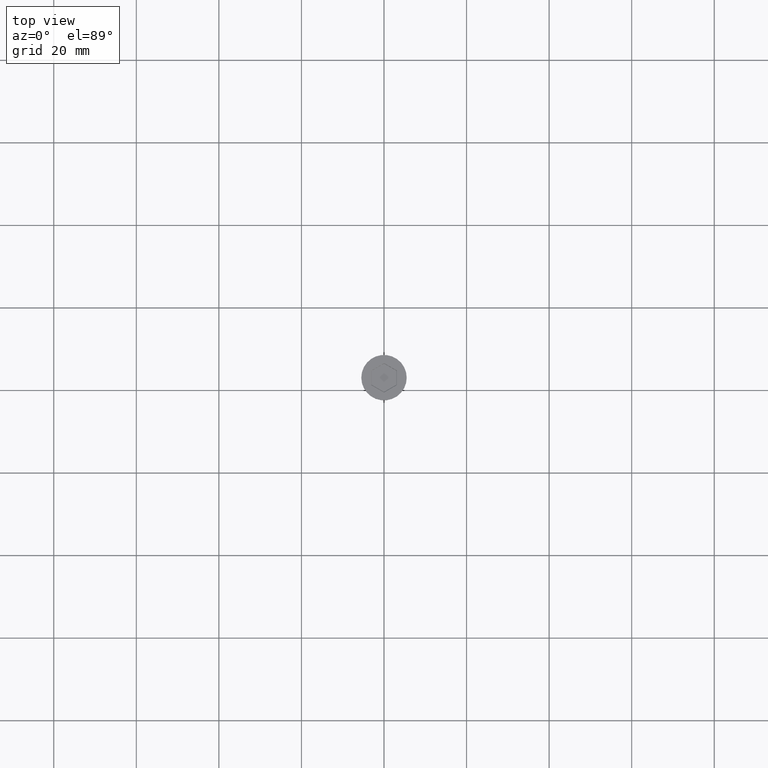
[diagram: clean part render]
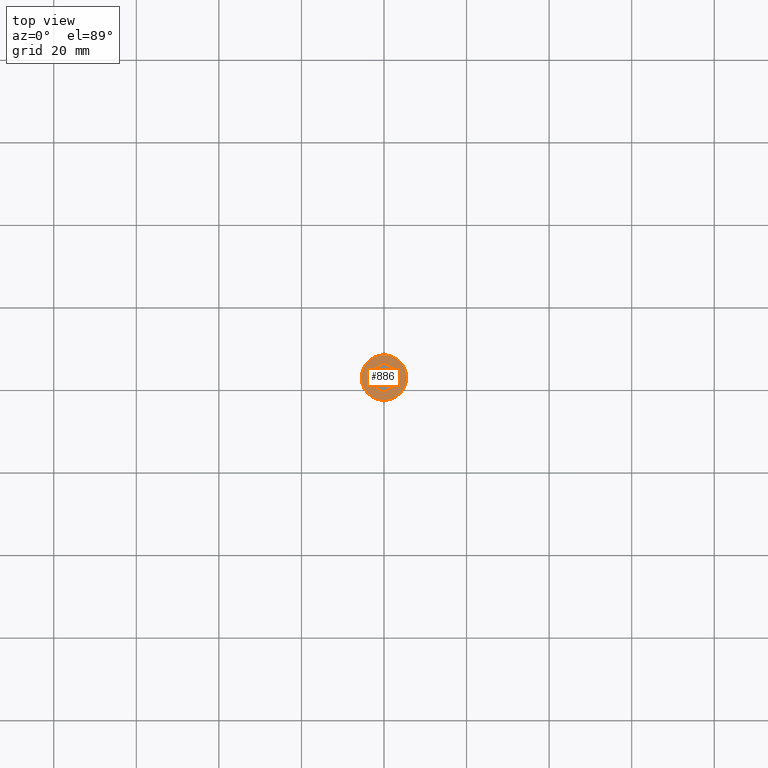
[diagram: same view with one face highlighted and labeled with its STEP entity id]
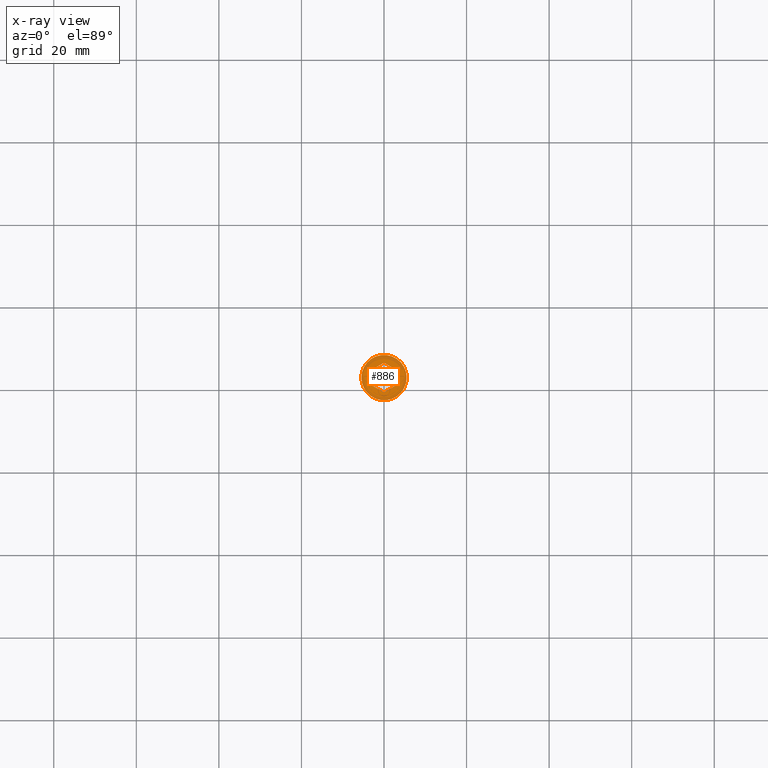
[diagram: x-ray of the same camera — body ghosted, the highlighted face saturated]
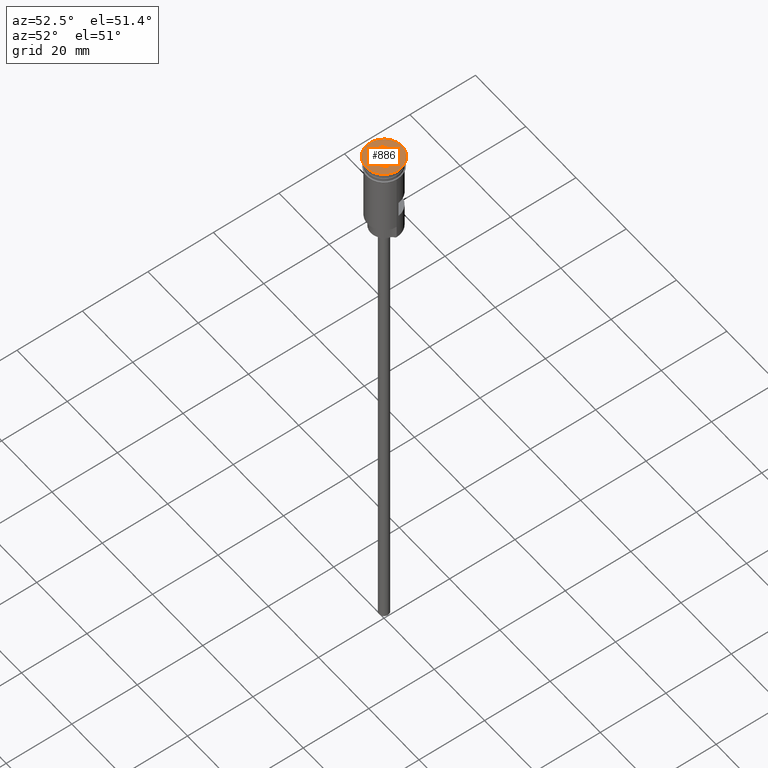
[diagram: same view with one face highlighted and labeled with its STEP entity id]
A machine part, top view. The second image highlights one B-rep face of the part: STEP entity #886.
The next image is the same camera in x-ray: the body ghosted, the highlighted face saturated — about 0% of this face is hidden behind the body in this view.
A second angle (auxiliary view) of the same face is appended — the face is thin or edge-on in the first view.
In plain terms, the highlighted planar face has unit normal (0, -0, 1).
Its self-contained STEP definition (entity closure, byte-faithful):
#3 = ORIENTED_EDGE ( 'NONE', *, *, #47, .T. ) ;
#36 = CARTESIAN_POINT ( 'NONE',  ( -1.958864205101993824E-16, -3.579571668975658927, 0.000000000000000000 ) ) ;
#47 = EDGE_CURVE ( 'NONE', #479, #1359, #405, .T. ) ;
#60 = EDGE_LOOP ( 'NONE', ( #585, #421, #3, #342, #1356, #1378 ) ) ;
#69 = LINE ( 'NONE', #1060, #1196 ) ;
#71 = ORIENTED_EDGE ( 'NONE', *, *, #310, .T. ) ;
#74 = AXIS2_PLACEMENT_3D ( 'NONE', #110, #482, #974 ) ;
#86 = EDGE_CURVE ( 'NONE', #1188, #975, #291, .T. ) ;
#110 = CARTESIAN_POINT ( 'NONE',  ( 0.000000000000000000, 0.000000000000000000, 0.000000000000000000 ) ) ;
#221 = FACE_BOUND ( 'NONE', #60, .T. ) ;
#253 = ORIENTED_EDGE ( 'NONE', *, *, #1426, .T. ) ;
#258 = CIRCLE ( 'NONE', #284, 5.500000000000000000 ) ;
#271 = DIRECTION ( 'NONE',  ( -0.000000000000000000, -0.000000000000000000, 1.000000000000000000 ) ) ;
#278 = CARTESIAN_POINT ( 'NONE',  ( 0.000000000000000000, 0.000000000000000000, 0.000000000000000000 ) ) ;
#284 = AXIS2_PLACEMENT_3D ( 'NONE', #1290, #1066, #1442 ) ;
#287 = DIRECTION ( 'NONE',  ( 1.000000000000000000, 0.000000000000000000, 0.000000000000000000 ) ) ;
#291 = LINE ( 'NONE', #771, #664 ) ;
#310 = EDGE_CURVE ( 'NONE', #858, #523, #258, .T. ) ;
#319 = EDGE_CURVE ( 'NONE', #975, #479, #69, .T. ) ;
#326 = EDGE_CURVE ( 'NONE', #330, #1490, #429, .T. ) ;
#330 = VERTEX_POINT ( 'NONE', #461 ) ;
#342 = ORIENTED_EDGE ( 'NONE', *, *, #360, .T. ) ;
#346 = FACE_OUTER_BOUND ( 'NONE', #1511, .T. ) ;
#360 = EDGE_CURVE ( 'NONE', #1359, #330, #1433, .T. ) ;
#405 = LINE ( 'NONE', #1301, #1584 ) ;
#421 = ORIENTED_EDGE ( 'NONE', *, *, #319, .T. ) ;
#429 = LINE ( 'NONE', #1173, #658 ) ;
#461 = CARTESIAN_POINT ( 'NONE',  ( 3.099999999999982769, -1.789785834487828353, 0.000000000000000000 ) ) ;
#479 = VERTEX_POINT ( 'NONE', #1467 ) ;
#482 = DIRECTION ( 'NONE',  ( 0.000000000000000000, -0.000000000000000000, 1.000000000000000000 ) ) ;
#508 = CIRCLE ( 'NONE', #1284, 5.500000000000000000 ) ;
#513 = DIRECTION ( 'NONE',  ( 0.000000000000000000, 1.000000000000000000, 0.000000000000000000 ) ) ;
#523 = VERTEX_POINT ( 'NONE', #1194 ) ;
#566 = DIRECTION ( 'NONE',  ( -0.8660254037844385966, -0.5000000000000001110, 0.000000000000000000 ) ) ;
#574 = CARTESIAN_POINT ( 'NONE',  ( 3.099999999999982769, -1.732050807568876083, 0.000000000000000000 ) ) ;
#585 = ORIENTED_EDGE ( 'NONE', *, *, #86, .T. ) ;
#612 = EDGE_CURVE ( 'NONE', #1490, #1188, #762, .T. ) ;
#645 = CARTESIAN_POINT ( 'NONE',  ( -3.049999999999991385, -1.818653347947305932, 0.000000000000000000 ) ) ;
#658 = VECTOR ( 'NONE', #566, 1000.000000000000114 ) ;
#664 = VECTOR ( 'NONE', #513, 1000.000000000000000 ) ;
#681 = DIRECTION ( 'NONE',  ( 0.8660254037844387076, 0.4999999999999998890, 0.000000000000000000 ) ) ;
#703 = PLANE ( 'NONE',  #74 ) ;
#759 = VECTOR ( 'NONE', #1137, 1000.000000000000000 ) ;
#762 = LINE ( 'NONE', #645, #759 ) ;
#771 = CARTESIAN_POINT ( 'NONE',  ( -3.099999999999983213, 1.732050807568876971, 0.000000000000000000 ) ) ;
#779 = CARTESIAN_POINT ( 'NONE',  ( -3.099999999999983213, -1.789785834487829241, 0.000000000000000000 ) ) ;
#858 = VERTEX_POINT ( 'NONE', #1101 ) ;
#886 = ADVANCED_FACE ( 'NONE', ( #221, #346 ), #703, .T. ) ;
#974 = DIRECTION ( 'NONE',  ( 1.000000000000000000, 0.000000000000000000, 0.000000000000000000 ) ) ;
#975 = VERTEX_POINT ( 'NONE', #1238 ) ;
#1060 = CARTESIAN_POINT ( 'NONE',  ( -0.04999999999999187039, 3.550704155516183125, 0.000000000000000000 ) ) ;
#1066 = DIRECTION ( 'NONE',  ( -0.000000000000000000, -0.000000000000000000, 1.000000000000000000 ) ) ;
#1073 = CARTESIAN_POINT ( 'NONE',  ( 3.099999999999983213, 1.789785834487831462, 0.000000000000000000 ) ) ;
#1101 = CARTESIAN_POINT ( 'NONE',  ( -5.500000000000000000, 6.735557395310442023E-16, 0.000000000000000000 ) ) ;
#1137 = DIRECTION ( 'NONE',  ( -0.8660254037844387076, 0.4999999999999998335, 0.000000000000000000 ) ) ;
#1173 = CARTESIAN_POINT ( 'NONE',  ( 0.04999999999999141936, -3.550704155516182237, 0.000000000000000000 ) ) ;
#1188 = VERTEX_POINT ( 'NONE', #779 ) ;
#1194 = CARTESIAN_POINT ( 'NONE',  ( 5.500000000000000000, 0.000000000000000000, 0.000000000000000000 ) ) ;
#1196 = VECTOR ( 'NONE', #681, 1000.000000000000000 ) ;
#1224 = VECTOR ( 'NONE', #1308, 1000.000000000000000 ) ;
#1238 = CARTESIAN_POINT ( 'NONE',  ( -3.099999999999983213, 1.789785834487829908, 0.000000000000000000 ) ) ;
#1284 = AXIS2_PLACEMENT_3D ( 'NONE', #278, #271, #287 ) ;
#1290 = CARTESIAN_POINT ( 'NONE',  ( 0.000000000000000000, 0.000000000000000000, 0.000000000000000000 ) ) ;
#1301 = CARTESIAN_POINT ( 'NONE',  ( 3.049999999999991829, 1.818653347947307708, 0.000000000000000000 ) ) ;
#1308 = DIRECTION ( 'NONE',  ( -1.251928832280966188E-16, -1.000000000000000000, 0.000000000000000000 ) ) ;
#1356 = ORIENTED_EDGE ( 'NONE', *, *, #326, .T. ) ;
#1359 = VERTEX_POINT ( 'NONE', #1073 ) ;
#1378 = ORIENTED_EDGE ( 'NONE', *, *, #612, .T. ) ;
#1426 = EDGE_CURVE ( 'NONE', #523, #858, #508, .T. ) ;
#1433 = LINE ( 'NONE', #574, #1224 ) ;
#1442 = DIRECTION ( 'NONE',  ( 1.000000000000000000, 0.000000000000000000, 0.000000000000000000 ) ) ;
#1467 = CARTESIAN_POINT ( 'NONE',  ( 6.103073414120078086E-16, 3.579571668975660259, 0.000000000000000000 ) ) ;
#1490 = VERTEX_POINT ( 'NONE', #36 ) ;
#1504 = DIRECTION ( 'NONE',  ( 0.8660254037844388186, -0.4999999999999997780, 0.000000000000000000 ) ) ;
#1511 = EDGE_LOOP ( 'NONE', ( #253, #71 ) ) ;
#1584 = VECTOR ( 'NONE', #1504, 1000.000000000000114 ) ;